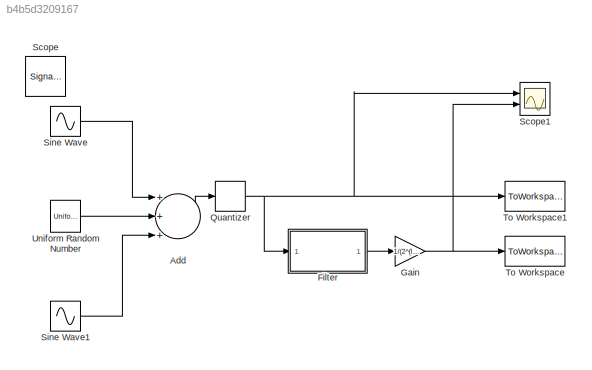
MODEL slx_b4b5d3209167
KIND model
BLOCK [Sum] Add
  InputSameDT = off
  Inputs = +++
  OutDataTypeStr = Inherit: Inherit via internal rule
  Ports = [3, 1]
  SaturateOnIntegerOverflow = off
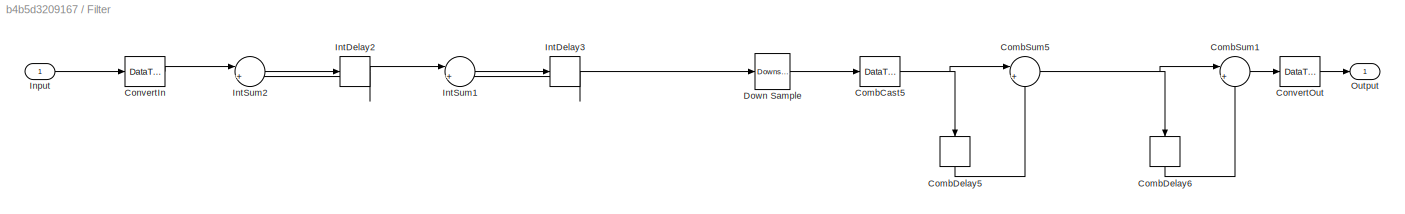
BLOCK [SubSystem] Filter
  ErrorFcn = dspFilterRealizedInBasicElemsAlgLoopErrFcnCallback
  Ports = [1, 1]
  RequestExecContextInheritance = off
  Tag = FilterWizardSubSystem
  UserDataPersistent = on
BLOCK [DataTypeConversion] Filter/CombCast5
  Commented = through
  OutDataTypeStr = fixdt(1,26,15)
  RndMeth = Floor
  SaturateOnIntegerOverflow = off
BLOCK [Delay] Filter/CombDelay5
  DelayLength = 1
  InitialCondition = 0
  InputPortMap = u0
  Ports = [1, 1]
BLOCK [Delay] Filter/CombDelay6
  DelayLength = 1
  InitialCondition = 0
  InputPortMap = u0
  Ports = [1, 1]
BLOCK [Sum] Filter/CombSum1
  IconShape = round
  InputSameDT = off
  Inputs = |+-
  OutDataTypeStr = Inherit: Inherit via internal rule
  Ports = [2, 1]
  SaturateOnIntegerOverflow = off
BLOCK [Sum] Filter/CombSum5
  IconShape = round
  InputSameDT = off
  Inputs = |+-
  OutDataTypeStr = Inherit: Inherit via internal rule
  Ports = [2, 1]
  SaturateOnIntegerOverflow = off
BLOCK [DataTypeConversion] Filter/ConvertIn
  Commented = through
  OutDataTypeStr = fixdt(1,16,15)
  RndMeth = Nearest
BLOCK [DataTypeConversion] Filter/ConvertOut
  Commented = through
  OutDataTypeStr = fixdt(1,26,15)
  RndMeth = Floor
  SaturateOnIntegerOverflow = off
BLOCK [Reference] Filter/Down Sample  REF=dspsigops/Downsample
  InputProcessing = Elements as channels (sample based)
  N = 32
  Ports = [1, 1]
  RateOptions = Allow multirate processing
  SourceBlock = dspsigops/Downsample
  SourceType = Downsample
  UserDataPersistent = on
  fmode = Maintain input frame size
  ic = 0
  phase = 0
  smode = Allow multirate
BLOCK [Inport] Filter/Input
  IconDisplay = Port number
BLOCK [Delay] Filter/IntDelay2
  DelayLength = 1
  InitialCondition = 0
  InputPortMap = u0
  Ports = [1, 1]
BLOCK [Delay] Filter/IntDelay3
  DelayLength = 1
  InitialCondition = 0
  InputPortMap = u0
  Ports = [1, 1]
BLOCK [Sum] Filter/IntSum1
  IconShape = round
  InputSameDT = off
  Inputs = |++
  OutDataTypeStr = Inherit: Inherit via internal rule
  Ports = [2, 1]
  SaturateOnIntegerOverflow = off
BLOCK [Sum] Filter/IntSum2
  IconShape = round
  InputSameDT = off
  Inputs = |++
  OutDataTypeStr = Inherit: Inherit via internal rule
  Ports = [2, 1]
  SaturateOnIntegerOverflow = off
BLOCK [Outport] Filter/Output
  IconDisplay = Port number
BLOCK [Gain] Gain
  Gain = 1/(2^(log2(32)*2))
  OutDataTypeStr = Inherit: Inherit via internal rule
  ParamDataTypeStr = Inherit: Inherit via internal rule
  SaturateOnIntegerOverflow = off
BLOCK [Quantizer] Quantizer
  QuantizationInterval = 1
BLOCK [SignalViewerScope] Scope
  IOType = viewer
  MaxDataPoints = 7500
  NumInputPorts = 1
  Ports = []
  RefreshTime = 0.035000
  ShowDataMarkers = off
  ShowLegends = off
BLOCK [Scope] Scope1
  DataFormat = StructureWithTime
  Floating = off
  LimitDataPoints = off
  NumInputPorts = 2
  Ports = [2]
  SampleTime = 0
  ShowLegends = off
  TimeRange = 0.1
  YMax = 2250~2e+06
  YMin = -2250~-2e+06
  ZoomMode = xonly
BLOCK [Sin] Sine Wave
  Amplitude = 2^10
  Frequency = 2*pi*0.1e3
  Ports = [0, 1]
  SampleTime = 1/200e3
BLOCK [Sin] Sine Wave1
  Amplitude = 2^6
  Frequency = 2*pi*1e3
  Ports = [0, 1]
  SampleTime = 1/200e3
BLOCK [ToWorkspace] To Workspace
  FixptAsFi = on
  MaxDataPoints = inf
  Ports = [1]
  SampleTime = -1
  Save2DSignal = 3-D array (concatenate along third dimension)
  VariableName = y
BLOCK [ToWorkspace] To Workspace1
  FixptAsFi = on
  MaxDataPoints = inf
  Ports = [1]
  SampleTime = -1
  Save2DSignal = 3-D array (concatenate along third dimension)
  VariableName = x
BLOCK [UniformRandomNumber] Uniform Random Number
  Maximum = +2^7
  Minimum = -2^7
  SampleTime = 1/50e3
LINE Add:1 -> Quantizer:1
NET Filter/CombCast5:1 -> Filter/CombDelay5:1, Filter/CombSum5:1
LINE Filter/CombDelay5:1 -> Filter/CombSum5:2
LINE Filter/CombDelay6:1 -> Filter/CombSum1:2
LINE Filter/CombSum1:1 -> Filter/ConvertOut:1
NET Filter/CombSum5:1 -> Filter/CombDelay6:1, Filter/CombSum1:1
LINE Filter/ConvertIn:1 -> Filter/IntSum2:1
LINE Filter/ConvertOut:1 -> Filter/Output:1
LINE Filter/Down Sample:1 -> Filter/CombCast5:1
LINE Filter/Input:1 -> Filter/ConvertIn:1
NET Filter/IntDelay2:1 -> Filter/IntSum1:1, Filter/IntSum2:2
NET Filter/IntDelay3:1 -> Filter/Down Sample:1, Filter/IntSum1:2
LINE Filter/IntSum1:1 -> Filter/IntDelay3:1
LINE Filter/IntSum2:1 -> Filter/IntDelay2:1
LINE Filter:1 -> Gain:1
NET Gain:1 -> Scope1:2, To Workspace:1
NET Quantizer:1 -> Filter:1, Scope1:1, To Workspace1:1
LINE Sine Wave1:1 -> Add:3
LINE Sine Wave:1 -> Add:1
LINE Uniform Random Number:1 -> Add:2
note: NET lines group one-source signal fan-out (src -> all destinations, sorted); 1:1 wires keep LINE
